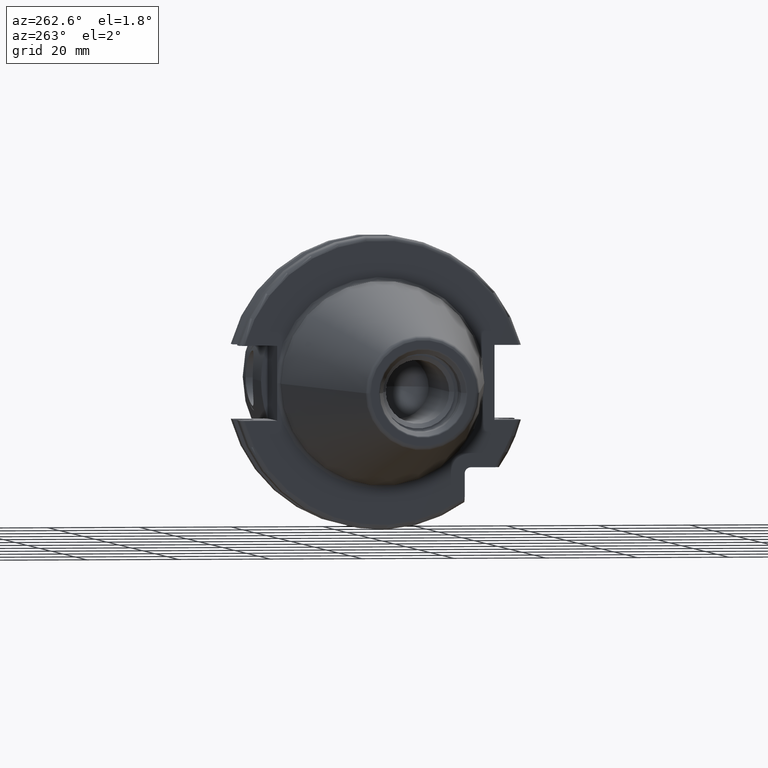
[diagram: clean part render]
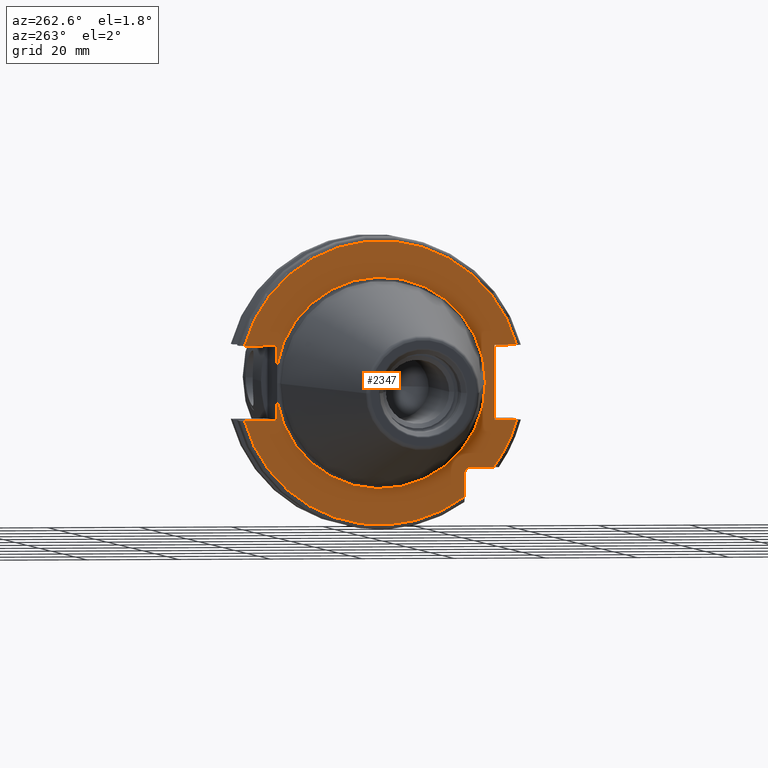
[diagram: same view with one face highlighted and labeled with its STEP entity id]
A machine part, auxiliary view. The second image highlights one B-rep face of the part: STEP entity #2347.
In plain terms, the highlighted planar face has unit normal (1, 0, 0).
Its self-contained STEP definition (entity closure, byte-faithful):
#117=CARTESIAN_POINT('',(3.2E0,0.E0,0.E0));
#118=DIRECTION('',(-1.E0,0.E0,0.E0));
#119=DIRECTION('',(0.E0,9.857923497268E-1,-1.679685780739E-1));
#120=AXIS2_PLACEMENT_3D('',#117,#118,#119);
#555=DIRECTION('',(0.E0,-1.E0,0.E0));
#556=VECTOR('',#555,4.990259339464E0);
#557=CARTESIAN_POINT('',(3.2E0,-1.97E1,-1.835E1));
#558=LINE('',#557,#556);
#559=DIRECTION('',(0.E0,0.E0,1.E0));
#560=VECTOR('',#559,4.990259339464E0);
#561=CARTESIAN_POINT('',(3.2E0,-1.835E1,-2.469025933946E1));
#562=LINE('',#561,#560);
#563=CARTESIAN_POINT('',(3.2E0,0.E0,0.E0));
#564=DIRECTION('',(-1.E0,0.E0,0.E0));
#565=DIRECTION('',(0.E0,9.647119303464E-1,-2.633075985372E-1));
#566=AXIS2_PLACEMENT_3D('',#563,#564,#565);
#568=DIRECTION('',(0.E0,-1.E0,0.E0));
#569=VECTOR('',#568,7.126950757280E0);
#570=CARTESIAN_POINT('',(3.2E0,2.967695075728E1,-8.1E0));
#571=LINE('',#570,#569);
#572=DIRECTION('',(0.E0,0.E0,-1.E0));
#573=VECTOR('',#572,4.257718776560E0);
#574=CARTESIAN_POINT('',(3.2E0,2.255E1,-3.842281223440E0));
#575=LINE('',#574,#573);
#576=DIRECTION('',(0.E0,0.E0,-1.E0));
#577=VECTOR('',#576,4.257718776560E0);
#578=CARTESIAN_POINT('',(3.2E0,2.255E1,8.1E0));
#579=LINE('',#578,#577);
#580=DIRECTION('',(0.E0,-1.E0,0.E0));
#581=VECTOR('',#580,7.126950757280E0);
#582=CARTESIAN_POINT('',(3.2E0,2.967695075728E1,8.1E0));
#583=LINE('',#582,#581);
#584=CARTESIAN_POINT('',(3.2E0,0.E0,0.E0));
#585=DIRECTION('',(1.E0,0.E0,0.E0));
#586=DIRECTION('',(0.E0,9.647119303464E-1,2.633075985372E-1));
#587=AXIS2_PLACEMENT_3D('',#584,#585,#586);
#589=DIRECTION('',(0.E0,1.E0,0.E0));
#590=VECTOR('',#589,4.826950757280E0);
#591=CARTESIAN_POINT('',(3.2E0,-2.967695075728E1,8.1E0));
#592=LINE('',#591,#590);
#593=DIRECTION('',(0.E0,0.E0,1.E0));
#594=VECTOR('',#593,1.62E1);
#595=CARTESIAN_POINT('',(3.2E0,-2.485E1,-8.1E0));
#596=LINE('',#595,#594);
#597=DIRECTION('',(0.E0,1.E0,0.E0));
#598=VECTOR('',#597,4.826950757280E0);
#599=CARTESIAN_POINT('',(3.2E0,-2.967695075728E1,-8.1E0));
#600=LINE('',#599,#598);
#601=CARTESIAN_POINT('',(3.2E0,0.E0,0.E0));
#602=DIRECTION('',(-1.E0,0.E0,0.E0));
#603=DIRECTION('',(0.E0,-8.026089992512E-1,-5.965054855750E-1));
#604=AXIS2_PLACEMENT_3D('',#601,#602,#603);
#615=CARTESIAN_POINT('',(3.2E0,-1.97E1,-1.97E1));
#616=DIRECTION('',(1.E0,0.E0,0.E0));
#617=DIRECTION('',(0.E0,1.E0,0.E0));
#618=AXIS2_PLACEMENT_3D('',#615,#616,#617);
#1005=CARTESIAN_POINT('',(3.2E0,0.E0,0.E0));
#1006=DIRECTION('',(1.E0,0.E0,0.E0));
#1007=DIRECTION('',(0.E0,9.857923497268E-1,1.679685780739E-1));
#1008=AXIS2_PLACEMENT_3D('',#1005,#1006,#1007);
#1389=CARTESIAN_POINT('',(3.2E0,-2.2875E1,0.E0));
#1391=VERTEX_POINT('',#1389);
#1531=CARTESIAN_POINT('',(3.2E0,2.967695075728E1,8.1E0));
#1532=CARTESIAN_POINT('',(3.2E0,2.255E1,8.1E0));
#1533=VERTEX_POINT('',#1531);
#1534=VERTEX_POINT('',#1532);
#1535=CARTESIAN_POINT('',(3.2E0,2.255E1,3.842281223440E0));
#1536=VERTEX_POINT('',#1535);
#1537=CARTESIAN_POINT('',(3.2E0,2.255E1,-3.842281223440E0));
#1538=CARTESIAN_POINT('',(3.2E0,2.255E1,-8.1E0));
#1539=VERTEX_POINT('',#1537);
#1540=VERTEX_POINT('',#1538);
#1541=CARTESIAN_POINT('',(3.2E0,2.967695075728E1,-8.1E0));
#1542=VERTEX_POINT('',#1541);
#1543=CARTESIAN_POINT('',(3.2E0,-2.967695075728E1,-8.1E0));
#1544=CARTESIAN_POINT('',(3.2E0,-2.485E1,-8.1E0));
#1545=VERTEX_POINT('',#1543);
#1546=VERTEX_POINT('',#1544);
#1547=CARTESIAN_POINT('',(3.2E0,-2.485E1,8.1E0));
#1548=VERTEX_POINT('',#1547);
#1549=CARTESIAN_POINT('',(3.2E0,-2.967695075728E1,8.1E0));
#1550=VERTEX_POINT('',#1549);
#1576=CARTESIAN_POINT('',(3.2E0,-1.835E1,-2.469025933946E1));
#1577=VERTEX_POINT('',#1576);
#1584=CARTESIAN_POINT('',(3.2E0,-1.97E1,-1.835E1));
#1585=CARTESIAN_POINT('',(3.2E0,-2.469025933946E1,-1.835E1));
#1586=VERTEX_POINT('',#1584);
#1587=VERTEX_POINT('',#1585);
#1588=CARTESIAN_POINT('',(3.2E0,-1.835E1,-1.97E1));
#1589=VERTEX_POINT('',#1588);
#2318=CARTESIAN_POINT('',(3.2E0,0.E0,0.E0));
#2319=DIRECTION('',(1.E0,0.E0,0.E0));
#2320=DIRECTION('',(0.E0,-1.E0,0.E0));
#2321=AXIS2_PLACEMENT_3D('',#2318,#2319,#2320);
#2322=PLANE('',#2321);
#2324=ORIENTED_EDGE('',*,*,#2323,.F.);
#2326=ORIENTED_EDGE('',*,*,#2325,.F.);
#2328=ORIENTED_EDGE('',*,*,#2327,.F.);
#2330=ORIENTED_EDGE('',*,*,#2329,.F.);
#2331=ORIENTED_EDGE('',*,*,#1958,.T.);
#2332=ORIENTED_EDGE('',*,*,#1812,.F.);
#2333=ORIENTED_EDGE('',*,*,#1793,.T.);
#2335=ORIENTED_EDGE('',*,*,#2334,.F.);
#2336=ORIENTED_EDGE('',*,*,#1807,.F.);
#2337=ORIENTED_EDGE('',*,*,#1870,.F.);
#2339=ORIENTED_EDGE('',*,*,#2338,.T.);
#2340=ORIENTED_EDGE('',*,*,#2297,.T.);
#2341=ORIENTED_EDGE('',*,*,#2053,.F.);
#2342=ORIENTED_EDGE('',*,*,#2073,.F.);
#2344=ORIENTED_EDGE('',*,*,#2343,.F.);
#2345=EDGE_LOOP('',(#2324,#2326,#2328,#2330,#2331,#2332,#2333,#2335,#2336,#2337,
#2339,#2340,#2341,#2342,#2344));
#2346=FACE_OUTER_BOUND('',#2345,.F.);
#2347=ADVANCED_FACE('',(#2346),#2322,.F.);
#121=CIRCLE('',#120,2.2875E1);
#567=CIRCLE('',#566,3.07625E1);
#588=CIRCLE('',#587,3.07625E1);
#605=CIRCLE('',#604,3.07625E1);
#619=CIRCLE('',#618,1.35E0);
#1009=CIRCLE('',#1008,2.2875E1);
#1793=EDGE_CURVE('',#1539,#1391,#121,.T.);
#1807=EDGE_CURVE('',#1534,#1536,#579,.T.);
#1812=EDGE_CURVE('',#1539,#1540,#575,.T.);
#1870=EDGE_CURVE('',#1533,#1534,#583,.T.);
#1958=EDGE_CURVE('',#1542,#1540,#571,.T.);
#2053=EDGE_CURVE('',#1546,#1548,#596,.T.);
#2073=EDGE_CURVE('',#1545,#1546,#600,.T.);
#2297=EDGE_CURVE('',#1550,#1548,#592,.T.);
#2323=EDGE_CURVE('',#1586,#1587,#558,.T.);
#2325=EDGE_CURVE('',#1589,#1586,#619,.T.);
#2327=EDGE_CURVE('',#1577,#1589,#562,.T.);
#2329=EDGE_CURVE('',#1542,#1577,#567,.T.);
#2334=EDGE_CURVE('',#1536,#1391,#1009,.T.);
#2338=EDGE_CURVE('',#1533,#1550,#588,.T.);
#2343=EDGE_CURVE('',#1587,#1545,#605,.T.);